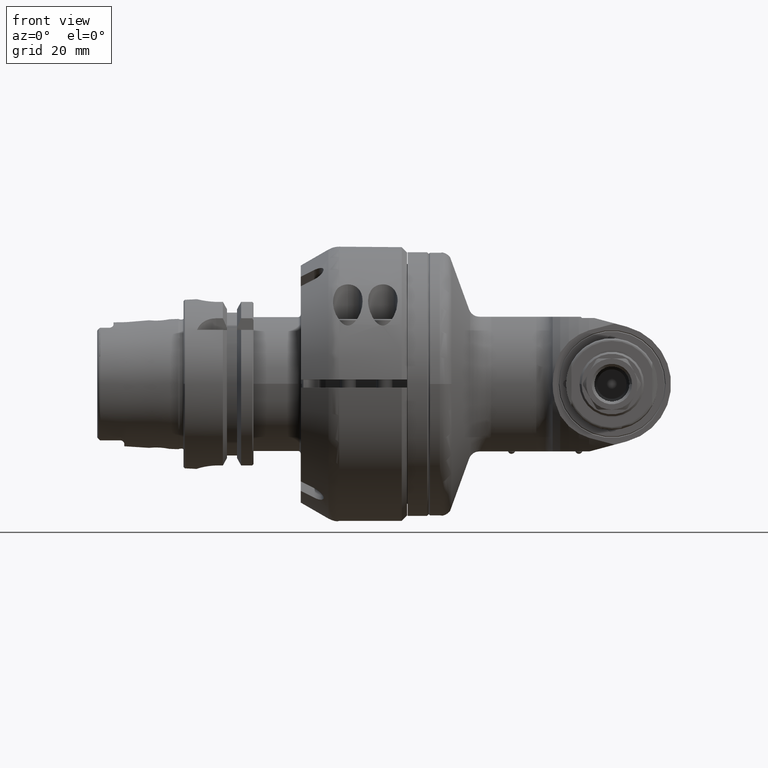
[diagram: clean part render]
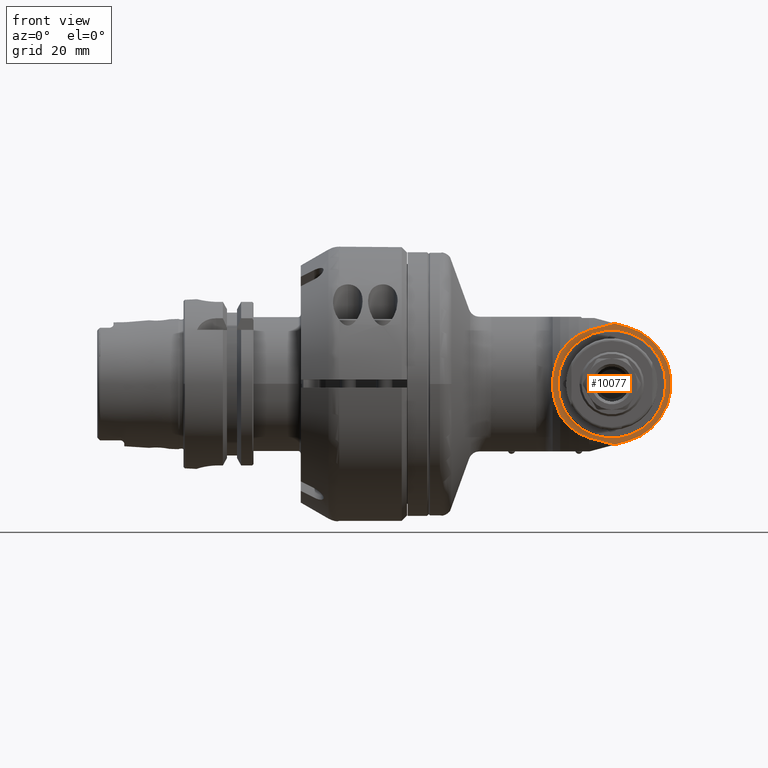
[diagram: same view with one face highlighted and labeled with its STEP entity id]
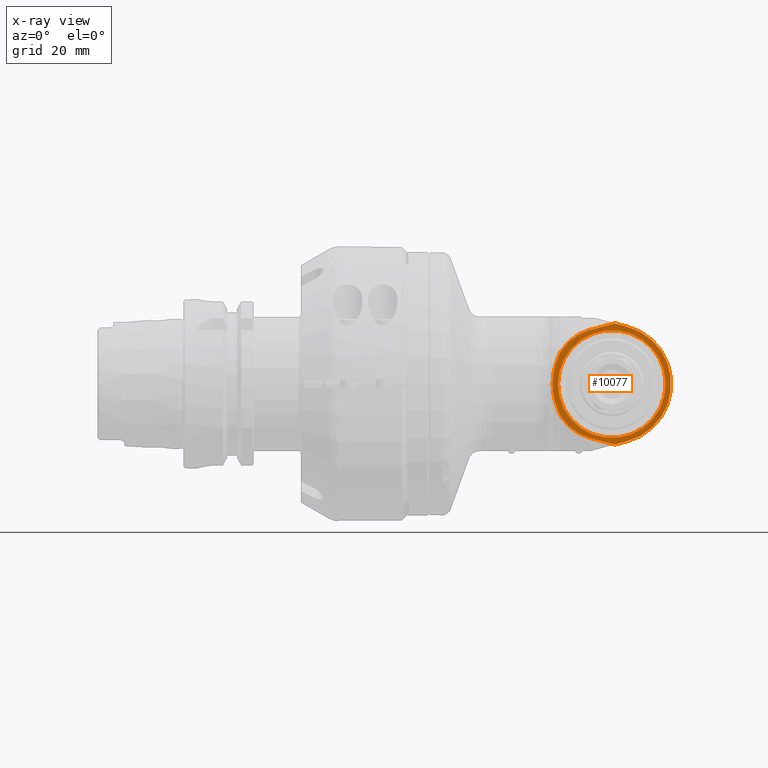
[diagram: x-ray of the same camera — body ghosted, the highlighted face saturated]
A machine part, front view. The second image highlights one B-rep face of the part: STEP entity #10077.
The next image is the same camera in x-ray: the body ghosted, the highlighted face saturated — about 0% of this face is hidden behind the body in this view.
In plain terms, the highlighted planar face has unit normal (0, -1, 0).
Its self-contained STEP definition (entity closure, byte-faithful):
#274=(
BOUNDED_CURVE()
B_SPLINE_CURVE(2,(#15281,#15282,#15283),.UNSPECIFIED.,.F.,.F.)
B_SPLINE_CURVE_WITH_KNOTS((3,3),(-3.92222123723915,-3.35941140096124),
 .UNSPECIFIED.)
CURVE()
GEOMETRIC_REPRESENTATION_ITEM()
RATIONAL_B_SPLINE_CURVE((1.02307218801729,1.02583835840886,1.02733561922244))
REPRESENTATION_ITEM('')
);
#275=(
BOUNDED_CURVE()
B_SPLINE_CURVE(2,(#15285,#15286,#15287),.UNSPECIFIED.,.F.,.F.)
B_SPLINE_CURVE_WITH_KNOTS((3,3),(-4.72244850008532,-4.02062410753705),
 .UNSPECIFIED.)
CURVE()
GEOMETRIC_REPRESENTATION_ITEM()
RATIONAL_B_SPLINE_CURVE((1.04367339941566,1.05088657348453,1.05499120015794))
REPRESENTATION_ITEM('')
);
#276=(
BOUNDED_CURVE()
B_SPLINE_CURVE(2,(#15289,#15290,#15291),.UNSPECIFIED.,.F.,.F.)
B_SPLINE_CURVE_WITH_KNOTS((3,3),(-7.16167869822639,-5.00579990438964),
 .UNSPECIFIED.)
CURVE()
GEOMETRIC_REPRESENTATION_ITEM()
RATIONAL_B_SPLINE_CURVE((1.47028864459951,1.47028864459951,1.42767158243723))
REPRESENTATION_ITEM('')
);
#277=(
BOUNDED_CURVE()
B_SPLINE_CURVE(2,(#15293,#15294,#15295),.UNSPECIFIED.,.F.,.F.)
B_SPLINE_CURVE_WITH_KNOTS((3,3),(-9.31755749206312,-7.16167869822639),
 .UNSPECIFIED.)
CURVE()
GEOMETRIC_REPRESENTATION_ITEM()
RATIONAL_B_SPLINE_CURVE((1.42767158243723,1.47028864459951,1.47028864459951))
REPRESENTATION_ITEM('')
);
#278=(
BOUNDED_CURVE()
B_SPLINE_CURVE(2,(#15297,#15298,#15299),.UNSPECIFIED.,.F.,.F.)
B_SPLINE_CURVE_WITH_KNOTS((3,3),(-2.1672007845424,-1.4653763919942),
 .UNSPECIFIED.)
CURVE()
GEOMETRIC_REPRESENTATION_ITEM()
RATIONAL_B_SPLINE_CURVE((1.05499120015799,1.05088657348458,1.04367339941571))
REPRESENTATION_ITEM('')
);
#279=(
BOUNDED_CURVE()
B_SPLINE_CURVE(2,(#15301,#15302,#15303),.UNSPECIFIED.,.F.,.F.)
B_SPLINE_CURVE_WITH_KNOTS((3,3),(-2.03122674860343,-1.46841691232826),
 .UNSPECIFIED.)
CURVE()
GEOMETRIC_REPRESENTATION_ITEM()
RATIONAL_B_SPLINE_CURVE((1.02733561922244,1.02583835840886,1.0230721880173))
REPRESENTATION_ITEM('')
);
#280=(
BOUNDED_CURVE()
B_SPLINE_CURVE(2,(#15305,#15306,#15307),.UNSPECIFIED.,.F.,.F.)
B_SPLINE_CURVE_WITH_KNOTS((3,3),(-2.06083203540873,-1.60186689601202),
 .UNSPECIFIED.)
CURVE()
GEOMETRIC_REPRESENTATION_ITEM()
RATIONAL_B_SPLINE_CURVE((1.01245862820411,1.01206055846647,1.01122185855376))
REPRESENTATION_ITEM('')
);
#281=(
BOUNDED_CURVE()
B_SPLINE_CURVE(2,(#15309,#15310,#15311),.UNSPECIFIED.,.F.,.F.)
B_SPLINE_CURVE_WITH_KNOTS((3,3),(-2.81499064111802,-1.8129184859545),
 .UNSPECIFIED.)
CURVE()
GEOMETRIC_REPRESENTATION_ITEM()
RATIONAL_B_SPLINE_CURVE((1.00549273102005,1.00593304681553,1.00536384081227))
REPRESENTATION_ITEM('')
);
#282=(
BOUNDED_CURVE()
B_SPLINE_CURVE(2,(#15319,#15320,#15321),.UNSPECIFIED.,.F.,.F.)
B_SPLINE_CURVE_WITH_KNOTS((3,3),(-2.94292971925211,-1.9408575640882),
 .UNSPECIFIED.)
CURVE()
GEOMETRIC_REPRESENTATION_ITEM()
RATIONAL_B_SPLINE_CURVE((1.00536384081229,1.00593304681555,1.00549273102007))
REPRESENTATION_ITEM('')
);
#283=(
BOUNDED_CURVE()
B_SPLINE_CURVE(2,(#15322,#15323,#15324),.UNSPECIFIED.,.F.,.F.)
B_SPLINE_CURVE_WITH_KNOTS((3,3),(-3.34906463290474,-2.89009949351087),
 .UNSPECIFIED.)
CURVE()
GEOMETRIC_REPRESENTATION_ITEM()
RATIONAL_B_SPLINE_CURVE((1.01122185855377,1.01206055846647,1.01245862820411))
REPRESENTATION_ITEM('')
);
#441=FACE_BOUND('',#2812,.T.);
#707=LINE('',#15313,#1364);
#708=LINE('',#15317,#1365);
#1364=VECTOR('',#12284,10.);
#1365=VECTOR('',#12287,10.);
#2189=FACE_OUTER_BOUND('',#2811,.T.);
#2811=EDGE_LOOP('',(#6693,#6694,#6695,#6696,#6697,#6698,#6699,#6700,#6701,
#6702,#6703,#6704,#6705));
#2812=EDGE_LOOP('',(#6706));
#3513=CIRCLE('',#10961,20.);
#3514=CIRCLE('',#10963,22.);
#4047=VERTEX_POINT('',#15275);
#4048=VERTEX_POINT('',#15279);
#4049=VERTEX_POINT('',#15280);
#4050=VERTEX_POINT('',#15284);
#4051=VERTEX_POINT('',#15288);
#4052=VERTEX_POINT('',#15292);
#4053=VERTEX_POINT('',#15296);
#4054=VERTEX_POINT('',#15300);
#4055=VERTEX_POINT('',#15304);
#4056=VERTEX_POINT('',#15308);
#4057=VERTEX_POINT('',#15312);
#4058=VERTEX_POINT('',#15314);
#4059=VERTEX_POINT('',#15316);
#4060=VERTEX_POINT('',#15318);
#5079=EDGE_CURVE('',#4047,#4047,#3513,.T.);
#5080=EDGE_CURVE('',#4048,#4049,#274,.T.);
#5081=EDGE_CURVE('',#4050,#4048,#275,.T.);
#5082=EDGE_CURVE('',#4051,#4050,#276,.T.);
#5083=EDGE_CURVE('',#4052,#4051,#277,.T.);
#5084=EDGE_CURVE('',#4053,#4052,#278,.T.);
#5085=EDGE_CURVE('',#4054,#4053,#279,.T.);
#5086=EDGE_CURVE('',#4055,#4054,#280,.T.);
#5087=EDGE_CURVE('',#4056,#4055,#281,.T.);
#5088=EDGE_CURVE('',#4056,#4057,#707,.T.);
#5089=EDGE_CURVE('',#4057,#4058,#3514,.T.);
#5090=EDGE_CURVE('',#4058,#4059,#708,.T.);
#5091=EDGE_CURVE('',#4060,#4059,#282,.T.);
#5092=EDGE_CURVE('',#4049,#4060,#283,.T.);
#6693=ORIENTED_EDGE('',*,*,#5080,.F.);
#6694=ORIENTED_EDGE('',*,*,#5081,.F.);
#6695=ORIENTED_EDGE('',*,*,#5082,.F.);
#6696=ORIENTED_EDGE('',*,*,#5083,.F.);
#6697=ORIENTED_EDGE('',*,*,#5084,.F.);
#6698=ORIENTED_EDGE('',*,*,#5085,.F.);
#6699=ORIENTED_EDGE('',*,*,#5086,.F.);
#6700=ORIENTED_EDGE('',*,*,#5087,.F.);
#6701=ORIENTED_EDGE('',*,*,#5088,.T.);
#6702=ORIENTED_EDGE('',*,*,#5089,.T.);
#6703=ORIENTED_EDGE('',*,*,#5090,.T.);
#6704=ORIENTED_EDGE('',*,*,#5091,.F.);
#6705=ORIENTED_EDGE('',*,*,#5092,.F.);
#6706=ORIENTED_EDGE('',*,*,#5079,.T.);
#9477=PLANE('',#10962);
#10077=ADVANCED_FACE('',(#2189,#441),#9477,.T.);
#10961=AXIS2_PLACEMENT_3D('',#15277,#12280,#12281);
#10962=AXIS2_PLACEMENT_3D('',#15278,#12282,#12283);
#10963=AXIS2_PLACEMENT_3D('',#15315,#12285,#12286);
#12280=DIRECTION('center_axis',(0.,1.,0.));
#12281=DIRECTION('ref_axis',(1.,0.,0.));
#12282=DIRECTION('center_axis',(0.,-1.,0.));
#12283=DIRECTION('ref_axis',(0.,0.,1.));
#12284=DIRECTION('',(0.965925826289076,0.,0.258819045102493));
#12285=DIRECTION('center_axis',(0.,-1.,0.));
#12286=DIRECTION('ref_axis',(0.258819045102493,0.,-0.965925826289076));
#12287=DIRECTION('',(-0.965925826289076,0.,0.258819045102493));
#15275=CARTESIAN_POINT('',(100.,-33.5,2.44929359829471E-15));
#15277=CARTESIAN_POINT('Origin',(80.,-33.5,0.));
#15278=CARTESIAN_POINT('Origin',(101.,-33.5,0.));
#15279=CARTESIAN_POINT('',(64.07305643891,-33.5,15.7082780724));
#15280=CARTESIAN_POINT('',(67.7662770112399,-33.4999999394536,18.3572876739537));
#15281=CARTESIAN_POINT('Ctrl Pts',(64.0730564389001,-33.5,15.7082780724014));
#15282=CARTESIAN_POINT('Ctrl Pts',(65.7760704668478,-33.5,17.0116471322917));
#15283=CARTESIAN_POINT('Ctrl Pts',(67.7662770443498,-33.5,18.3572876252815));
#15284=CARTESIAN_POINT('',(60.85629605814,-33.5,11.74734012447));
#15285=CARTESIAN_POINT('Ctrl Pts',(60.8562960581448,-33.5,11.7473401244665));
#15286=CARTESIAN_POINT('Ctrl Pts',(62.2326401645051,-33.5,13.6868338782826));
#15287=CARTESIAN_POINT('Ctrl Pts',(64.0730564389082,-33.5,15.7082780724007));
#15288=CARTESIAN_POINT('',(58.00000004466,-33.5,-1.812321641045E-14));
#15289=CARTESIAN_POINT('Ctrl Pts',(58.0000000446579,-33.5,-1.44980253714803E-14));
#15290=CARTESIAN_POINT('Ctrl Pts',(58.0000000446579,-33.5,5.7034187560822));
#15291=CARTESIAN_POINT('Ctrl Pts',(60.8562960581407,-33.5,11.7473401244677));
#15292=CARTESIAN_POINT('',(60.85629605814,-33.5,-11.74734012447));
#15293=CARTESIAN_POINT('Ctrl Pts',(60.8562960581406,-33.5,-11.7473401244676));
#15294=CARTESIAN_POINT('Ctrl Pts',(58.0000000446579,-33.5,-5.70341875608221));
#15295=CARTESIAN_POINT('Ctrl Pts',(58.0000000446579,-33.5,-1.44980253714803E-14));
#15296=CARTESIAN_POINT('',(64.07305643891,-33.5,-15.7082780724));
#15297=CARTESIAN_POINT('Ctrl Pts',(64.0730564389083,-33.5,-15.7082780724007));
#15298=CARTESIAN_POINT('Ctrl Pts',(62.2326401645051,-33.5,-13.6868338782826));
#15299=CARTESIAN_POINT('Ctrl Pts',(60.8562960581448,-33.5,-11.7473401244665));
#15300=CARTESIAN_POINT('',(67.7662770112226,-33.4999999394568,-18.3572876739382));
#15301=CARTESIAN_POINT('Ctrl Pts',(67.7662770443307,-33.5,-18.3572876252685));
#15302=CARTESIAN_POINT('Ctrl Pts',(65.7760704668396,-33.5,-17.0116471322854));
#15303=CARTESIAN_POINT('Ctrl Pts',(64.0730564389001,-33.5,-15.7082780724014));
#15304=CARTESIAN_POINT('',(71.5299814278874,-33.4999999124498,-19.9687259206296));
#15305=CARTESIAN_POINT('Ctrl Pts',(71.5299814674932,-33.5,-19.9687258368121));
#15306=CARTESIAN_POINT('Ctrl Pts',(69.5690057572058,-33.5,-19.1546572718004));
#15307=CARTESIAN_POINT('Ctrl Pts',(67.7662770659797,-33.5,-18.3572875504773));
#15308=CARTESIAN_POINT('',(81.0975986653011,-33.5000040656496,-22.4819815240696));
#15309=CARTESIAN_POINT('Ctrl Pts',(81.097562546986,-33.5,-22.4819849709159));
#15310=CARTESIAN_POINT('Ctrl Pts',(76.0305516504045,-33.5,-21.20405953516));
#15311=CARTESIAN_POINT('Ctrl Pts',(71.5299814801907,-33.5,-19.9687257423428));
#15312=CARTESIAN_POINT('',(85.69401899225,-33.5,-21.25036817836));
#15313=CARTESIAN_POINT('',(95.4906523621261,-33.5,-18.6253681783609));
#15314=CARTESIAN_POINT('',(85.69401899226,-33.5,21.25036817836));
#15315=CARTESIAN_POINT('Origin',(80.,-33.5,0.));
#15316=CARTESIAN_POINT('',(81.0975985452635,-33.5000040521374,22.4819815355245));
#15317=CARTESIAN_POINT('',(88.4937441281061,-33.5,20.5001840891808));
#15318=CARTESIAN_POINT('',(71.5299814278855,-33.4999999124501,19.9687259206279));
#15319=CARTESIAN_POINT('Ctrl Pts',(71.5299814801888,-33.5,19.968725742341));
#15320=CARTESIAN_POINT('Ctrl Pts',(76.0305516504041,-33.5,21.2040595351587));
#15321=CARTESIAN_POINT('Ctrl Pts',(81.0975625469876,-33.5,22.4819849709152));
#15322=CARTESIAN_POINT('Ctrl Pts',(67.766277066,-33.5,18.3572875504863));
#15323=CARTESIAN_POINT('Ctrl Pts',(69.5690057572158,-33.5,19.1546572718045));
#15324=CARTESIAN_POINT('Ctrl Pts',(71.529981467491,-33.5,19.9687258368112));